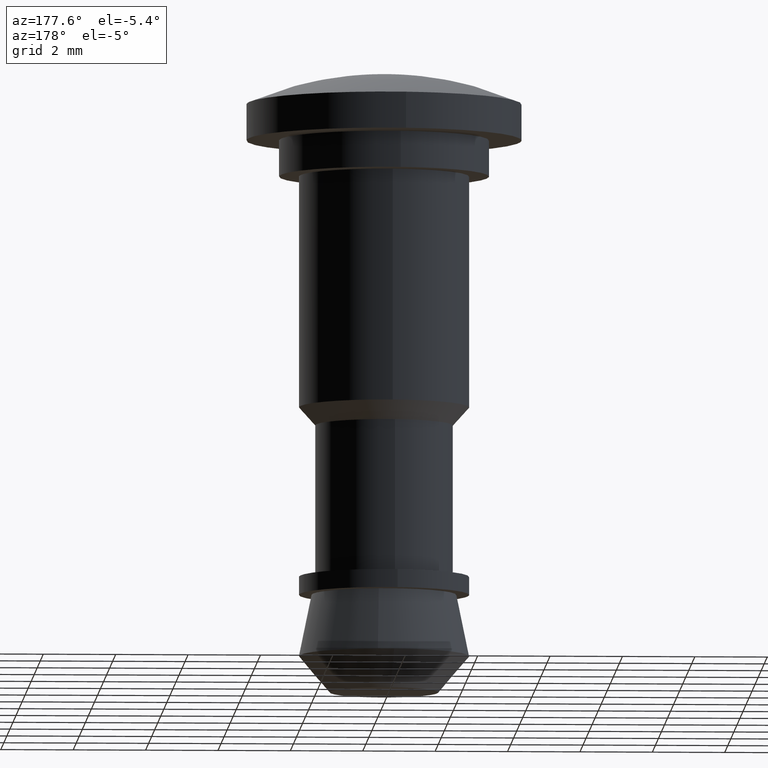
[diagram: clean part render]
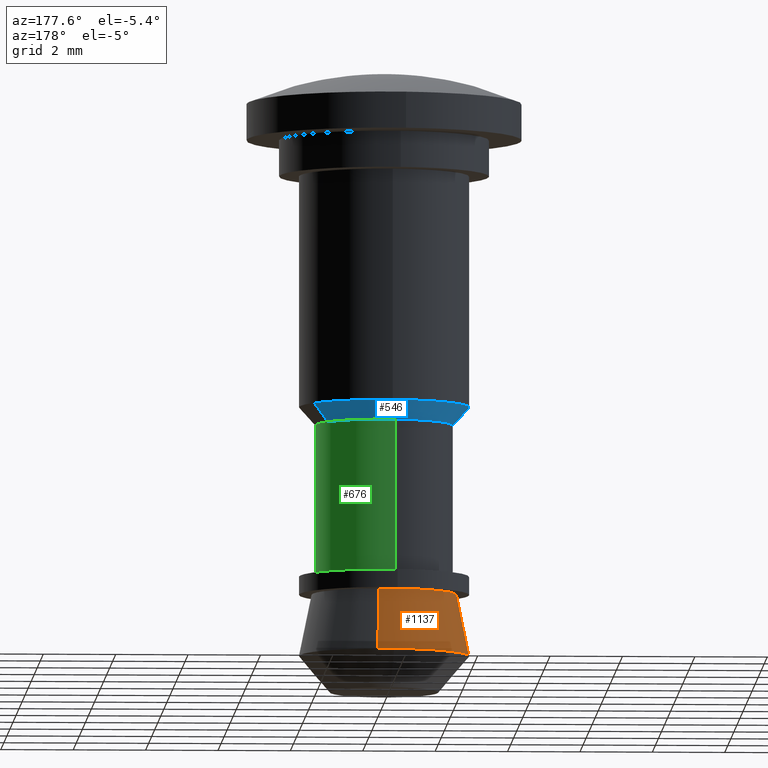
[diagram: same view with three faces highlighted in distinct colors, each labeled with its STEP entity id]
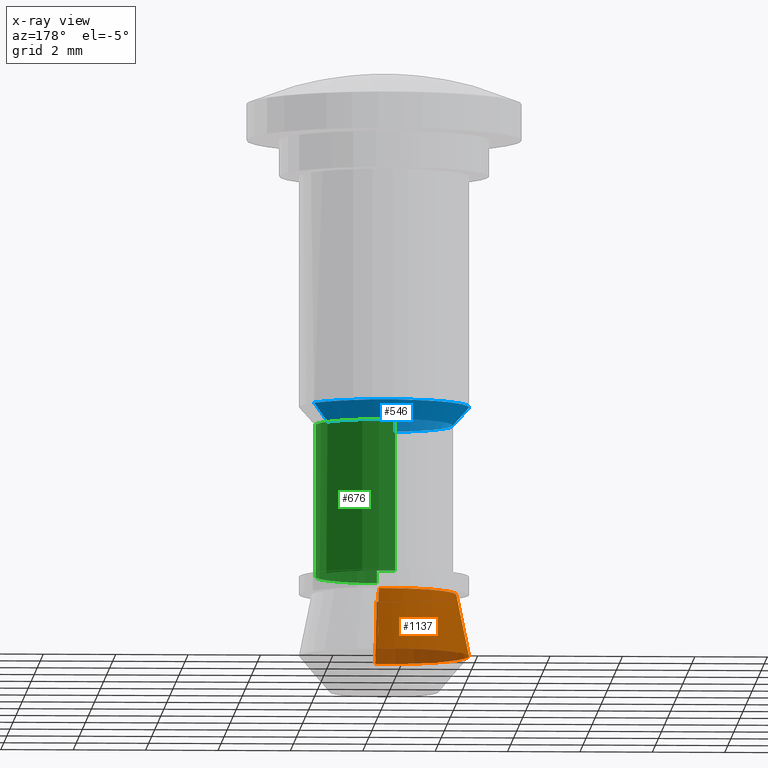
[diagram: x-ray of the same camera — body ghosted, the three highlighted faces saturated]
A machine part, auxiliary view with three faces highlighted in distinct colors.
The next image is the same camera in x-ray (body ghosted, the three faces saturated) — at least one of them is partly hidden behind the body in this view.
Their STEP definitions:

[orange] entity #1137 — the highlighted face is a freeform B-spline surface patch.
#940=CARTESIAN_POINT('',(0.268134337348762,2.334633233307251,-13.299905292481110));
#941=VERTEX_POINT('',#940);
#957=CARTESIAN_POINT('',(0.228201329490028,1.986938386870660,-11.600000000001440));
#958=VERTEX_POINT('',#957);
#959=CARTESIAN_POINT('',(0.228201329490028,1.986938386870660,-11.600000000001440));
#960=CARTESIAN_POINT('',(0.268134337348762,2.334633233307251,-13.299905292481110));
#961=QUASI_UNIFORM_CURVE('',1,(#959,#960),.UNSPECIFIED.,.F.,.U.);
#962=EDGE_CURVE('',#958,#941,#961,.T.);
#979=CARTESIAN_POINT('',(0.122095608575917,-1.996269529733982,-11.599999238618530));
#980=VERTEX_POINT('',#979);
#994=CARTESIAN_POINT('',(0.143462662315270,-2.345597284441948,-13.299905085102059));
#995=VERTEX_POINT('',#994);
#996=CARTESIAN_POINT('',(0.122095608575917,-1.996269529733982,-11.599999238618530));
#997=CARTESIAN_POINT('',(0.143462662315270,-2.345597284441948,-13.299905085102059));
#998=QUASI_UNIFORM_CURVE('',1,(#996,#997),.UNSPECIFIED.,.F.,.U.);
#999=EDGE_CURVE('',#980,#995,#998,.T.);
#1032=CARTESIAN_POINT('',(0.121562934107822,-1.987536403913509,-11.557502367688020));
#1033=CARTESIAN_POINT('',(-1.865973469805687,-2.109099338021331,-11.557502367688024));
#1034=CARTESIAN_POINT('',(-1.987536403913509,-0.121562934107822,-11.557502367688020));
#1035=CARTESIAN_POINT('',(-2.109099338021331,1.865973469805687,-11.557502367688024));
#1036=CARTESIAN_POINT('',(-0.121562934107822,1.987536403913509,-11.557502367688020));
#1037=CARTESIAN_POINT('',(0.053228551065287,1.998227109126691,-11.557502367688020));
#1038=CARTESIAN_POINT('',(0.227203004284345,1.978246015710512,-11.557502367688024));
#1039=CARTESIAN_POINT('',(0.144010376131359,-2.354548836806472,-13.343465365598879));
#1040=CARTESIAN_POINT('',(-2.210538460675112,-2.498559212937830,-13.343465365598881));
#1041=CARTESIAN_POINT('',(-2.354548836806472,-0.144010376131359,-13.343465365598879));
#1042=CARTESIAN_POINT('',(-2.498559212937830,2.210538460675112,-13.343465365598881));
#1043=CARTESIAN_POINT('',(-0.144010376131359,2.354548836806472,-13.343465365598879));
#1044=CARTESIAN_POINT('',(0.063057573561364,2.367213655158867,-13.343465365598881));
#1045=CARTESIAN_POINT('',(0.269157620662086,2.343542913748270,-13.343465365598886));
#1053=(BOUNDED_SURFACE()B_SPLINE_SURFACE(2,1,((#1032,#1039),(#1033,#1040),(#1034,#1041),(#1035,#1042),(#1036,#1043),(#1037,#1044),(#1038,#1045)),.UNSPECIFIED.,.F.,.F.,.U.)B_SPLINE_SURFACE_WITH_KNOTS((3,2,2,3),(2,2),(0.0,3.908434263656745,7.816868527313489,8.285880638952300),(0.0,1.0),.UNSPECIFIED.)GEOMETRIC_REPRESENTATION_ITEM()RATIONAL_B_SPLINE_SURFACE(((1.0,1.0),(0.707106781186548,0.707106781186548),(1.0,1.0),(0.707106781186548,0.707106781186548),(1.0,1.0),(0.964852813742386,0.964852813742386),(0.938140952186599,0.938140952186599)))REPRESENTATION_ITEM('')SURFACE());
#1054=CARTESIAN_POINT('',(-0.184377345131891,2.342736295773938,-13.299905292476980));
#1055=VERTEX_POINT('',#1054);
#1056=CARTESIAN_POINT('',(-0.184377345131891,2.342736295773938,-13.299905292476977));
#1057=CARTESIAN_POINT('',(-0.092330985380134,2.349980501392765,-13.299905292479099));
#1058=CARTESIAN_POINT('',(0.0,2.349980501392765,-13.299905292479099));
#1059=CARTESIAN_POINT('',(0.134506386276113,2.349980501392765,-13.299905292479107));
#1060=CARTESIAN_POINT('',(0.268134337348762,2.334633233307252,-13.299905292481103));
#1068=(BOUNDED_CURVE()B_SPLINE_CURVE(2,(#1056,#1057,#1058,#1059,#1060),.UNSPECIFIED.,.F.,.U.)B_SPLINE_CURVE_WITH_KNOTS((3,2,3),(0.236331300630658,0.250000000000000,0.269767755878481),.UNSPECIFIED.)CURVE()GEOMETRIC_REPRESENTATION_ITEM()RATIONAL_B_SPLINE_CURVE((0.969723356167415,0.983986122578880,1.0,0.976840633408132,0.957343736456971))REPRESENTATION_ITEM(''));
#1069=EDGE_CURVE('',#1055,#941,#1068,.T.);
#1070=ORIENTED_EDGE('',*,*,#1069,.F.);
#1071=CARTESIAN_POINT('',(-2.349980501392765,0.0,-13.299905292479099));
#1072=VERTEX_POINT('',#1071);
#1073=CARTESIAN_POINT('',(-2.349980501392765,0.0,-13.299905292479099));
#1074=CARTESIAN_POINT('',(-2.349980501392765,2.172299631042855,-13.299905292479099));
#1075=CARTESIAN_POINT('',(-0.184377345131891,2.342736295773938,-13.299905292476977));
#1083=(BOUNDED_CURVE()B_SPLINE_CURVE(2,(#1073,#1074,#1075),.UNSPECIFIED.,.F.,.U.)B_SPLINE_CURVE_WITH_KNOTS((3,3),(0.0,0.236331300630658),.UNSPECIFIED.)CURVE()GEOMETRIC_REPRESENTATION_ITEM()RATIONAL_B_SPLINE_CURVE((1.0,0.723120658607667,0.969723356167415))REPRESENTATION_ITEM(''));
#1084=EDGE_CURVE('',#1072,#1055,#1083,.T.);
#1085=ORIENTED_EDGE('',*,*,#1084,.F.);
#1086=CARTESIAN_POINT('',(0.143462662315270,-2.345597284441948,-13.299905085102065));
#1087=CARTESIAN_POINT('',(0.071798184795513,-2.349980501392765,-13.299905292479099));
#1088=CARTESIAN_POINT('',(0.0,-2.349980501392765,-13.299905292479099));
#1089=CARTESIAN_POINT('',(-2.349980501392765,-2.349980501392765,-13.299905292479099));
#1090=CARTESIAN_POINT('',(-2.349980501392765,0.0,-13.299905292479099));
#1098=(BOUNDED_CURVE()B_SPLINE_CURVE(2,(#1086,#1087,#1088,#1089,#1090),.UNSPECIFIED.,.F.,.U.)B_SPLINE_CURVE_WITH_KNOTS((3,2,3),(0.739332993524006,0.750000000000000,1.0),.UNSPECIFIED.)CURVE()GEOMETRIC_REPRESENTATION_ITEM()RATIONAL_B_SPLINE_CURVE((0.976072108716573,0.987502824552569,1.0,0.707106781186548,1.0))REPRESENTATION_ITEM(''));
#1099=EDGE_CURVE('',#995,#1072,#1098,.T.);
#1100=ORIENTED_EDGE('',*,*,#1099,.F.);
#1101=ORIENTED_EDGE('',*,*,#999,.F.);
#1102=CARTESIAN_POINT('',(-2.0,0.0,-11.600000000000000));
#1103=VERTEX_POINT('',#1102);
#1104=CARTESIAN_POINT('',(0.122095608575917,-1.996269529733982,-11.599999238618523));
#1105=CARTESIAN_POINT('',(0.061104794086950,-2.000000000000000,-11.599999999999994));
#1106=CARTESIAN_POINT('',(0.0,-2.0,-11.600000000000000));
#1107=CARTESIAN_POINT('',(-2.000000000000000,-2.000000000000000,-11.600000000000001));
#1108=CARTESIAN_POINT('',(-2.0,0.0,-11.600000000000000));
#1116=(BOUNDED_CURVE()B_SPLINE_CURVE(2,(#1104,#1105,#1106,#1107,#1108),.UNSPECIFIED.,.F.,.U.)B_SPLINE_CURVE_WITH_KNOTS((3,2,3),(0.739333088516402,0.750000000000000,1.0),.UNSPECIFIED.)CURVE()GEOMETRIC_REPRESENTATION_ITEM()RATIONAL_B_SPLINE_CURVE((0.976072312303500,0.987502935843083,1.0,0.707106781186548,1.0))REPRESENTATION_ITEM(''));
#1117=EDGE_CURVE('',#980,#1103,#1116,.T.);
#1118=ORIENTED_EDGE('',*,*,#1117,.T.);
#1119=CARTESIAN_POINT('',(-2.0,0.0,-11.600000000000000));
#1120=CARTESIAN_POINT('',(-2.000000000000000,2.000000000000000,-11.600000000000001));
#1121=CARTESIAN_POINT('',(0.0,2.0,-11.600000000000000));
#1122=CARTESIAN_POINT('',(0.114474470059950,2.000000000000000,-11.600000000000005));
#1123=CARTESIAN_POINT('',(0.228201329490028,1.986938386870660,-11.600000000001440));
#1131=(BOUNDED_CURVE()B_SPLINE_CURVE(2,(#1119,#1120,#1121,#1122,#1123),.UNSPECIFIED.,.F.,.U.)B_SPLINE_CURVE_WITH_KNOTS((3,2,3),(0.0,0.250000000000000,0.269767755878189),.UNSPECIFIED.)CURVE()GEOMETRIC_REPRESENTATION_ITEM()RATIONAL_B_SPLINE_CURVE((1.0,0.707106781186548,1.0,0.976840633408475,0.957343736457548))REPRESENTATION_ITEM(''));
#1132=EDGE_CURVE('',#1103,#958,#1131,.T.);
#1133=ORIENTED_EDGE('',*,*,#1132,.T.);
#1134=ORIENTED_EDGE('',*,*,#962,.T.);
#1135=EDGE_LOOP('',(#1070,#1085,#1100,#1101,#1118,#1133,#1134));
#1136=FACE_OUTER_BOUND('',#1135,.T.);
#1137=ADVANCED_FACE('',(#1136),#1053,.T.);

[blue] entity #546 — the highlighted face is a freeform B-spline surface patch.
#248=CARTESIAN_POINT('',(-0.143464067918807,2.345616776290660,-6.400000000000111));
#249=VERTEX_POINT('',#248);
#250=CARTESIAN_POINT('',(1.981144114827373,1.263949364605564,-6.399999999999643));
#251=VERTEX_POINT('',#250);
#252=CARTESIAN_POINT('',(-0.143464067918807,2.345616776290660,-6.400000000000111));
#253=CARTESIAN_POINT('',(-0.071798993763611,2.350000000000000,-6.400000000000111));
#254=CARTESIAN_POINT('',(0.0,2.350000000000000,-6.400000000000111));
#255=CARTESIAN_POINT('',(1.288255091624139,2.350000000000000,-6.400000000000111));
#256=CARTESIAN_POINT('',(1.981144114827373,1.263949364605564,-6.399999999999644));
#264=(BOUNDED_CURVE()B_SPLINE_CURVE(2,(#252,#253,#254,#255,#256),.UNSPECIFIED.,.F.,.U.)B_SPLINE_CURVE_WITH_KNOTS((3,2,3),(0.239332962240218,0.250000000000000,0.407950112626527),.UNSPECIFIED.)CURVE()GEOMETRIC_REPRESENTATION_ITEM()RATIONAL_B_SPLINE_CURVE((0.976072041669452,0.987502787901332,1.0,0.814949932403476,0.863729296954292))REPRESENTATION_ITEM(''));
#265=EDGE_CURVE('',#249,#251,#264,.T.);
#306=CARTESIAN_POINT('',(0.143463873339650,-2.345616788191615,-6.400000000000112));
#307=VERTEX_POINT('',#306);
#313=CARTESIAN_POINT('',(0.184378874975639,-2.342755734273563,-6.399999999997990));
#314=VERTEX_POINT('',#313);
#315=CARTESIAN_POINT('',(0.184378874975639,-2.342755734273564,-6.399999999997990));
#316=CARTESIAN_POINT('',(0.163933761071728,-2.344364799632380,-6.400000000000110));
#317=CARTESIAN_POINT('',(0.143463873339650,-2.345616788191615,-6.400000000000113));
#325=(BOUNDED_CURVE()B_SPLINE_CURVE(2,(#315,#316,#317),.UNSPECIFIED.,.F.,.U.)B_SPLINE_CURVE_WITH_KNOTS((3,3),(0.736331300630564,0.739332990867239),.UNSPECIFIED.)CURVE()GEOMETRIC_REPRESENTATION_ITEM()RATIONAL_B_SPLINE_CURVE((0.969723356167218,0.972855505432367,0.976072103022613))REPRESENTATION_ITEM(''));
#326=EDGE_CURVE('',#314,#307,#325,.T.);
#377=CARTESIAN_POINT('',(-2.350000000000000,0.0,-6.400000000000111));
#378=VERTEX_POINT('',#377);
#379=CARTESIAN_POINT('',(-2.350000000000000,0.0,-6.400000000000111));
#380=CARTESIAN_POINT('',(-2.350000000000001,2.210659257205923,-6.400000000000111));
#381=CARTESIAN_POINT('',(-0.143464067918807,2.345616776290660,-6.400000000000111));
#389=(BOUNDED_CURVE()B_SPLINE_CURVE(2,(#379,#380,#381),.UNSPECIFIED.,.F.,.U.)B_SPLINE_CURVE_WITH_KNOTS((3,3),(0.0,0.239332962240218),.UNSPECIFIED.)CURVE()GEOMETRIC_REPRESENTATION_ITEM()RATIONAL_B_SPLINE_CURVE((1.0,0.719603993285216,0.976072041669452))REPRESENTATION_ITEM(''));
#390=EDGE_CURVE('',#378,#249,#389,.T.);
#392=CARTESIAN_POINT('',(0.143463873339650,-2.345616788191615,-6.400000000000112));
#393=CARTESIAN_POINT('',(0.071798798638874,-2.350000000000000,-6.400000000000111));
#394=CARTESIAN_POINT('',(0.0,-2.350000000000000,-6.400000000000111));
#395=CARTESIAN_POINT('',(-2.350000000000001,-2.350000000000001,-6.400000000000110));
#396=CARTESIAN_POINT('',(-2.350000000000000,0.0,-6.400000000000111));
#404=(BOUNDED_CURVE()B_SPLINE_CURVE(2,(#392,#393,#394,#395,#396),.UNSPECIFIED.,.F.,.U.)B_SPLINE_CURVE_WITH_KNOTS((3,2,3),(0.739332990867239,0.750000000000000,1.0),.UNSPECIFIED.)CURVE()GEOMETRIC_REPRESENTATION_ITEM()RATIONAL_B_SPLINE_CURVE((0.976072103022614,0.987502821439973,1.0,0.707106781186547,1.0))REPRESENTATION_ITEM(''));
#405=EDGE_CURVE('',#307,#378,#404,.T.);
#442=CARTESIAN_POINT('',(1.592291892292633,1.015865686121517,-6.912499999999999));
#443=CARTESIAN_POINT('',(0.982350009734754,1.971903012349742,-6.912499999999998));
#444=CARTESIAN_POINT('',(-0.148189617055968,1.882927614088444,-6.912499999999998));
#445=CARTESIAN_POINT('',(-2.031117231144412,1.734737997032476,-6.912499999999998));
#446=CARTESIAN_POINT('',(-1.882927614088444,-0.148189617055968,-6.912499999999998));
#447=CARTESIAN_POINT('',(-1.734737997032476,-2.031117231144412,-6.912499999999998));
#448=CARTESIAN_POINT('',(0.148189617055968,-1.882927614088444,-6.912499999999998));
#449=CARTESIAN_POINT('',(1.990865420394796,1.270151456560499,-6.387187500000112));
#450=CARTESIAN_POINT('',(1.228246325043768,2.465498655530393,-6.387187500000112));
#451=CARTESIAN_POINT('',(-0.185283606408048,2.354251437277450,-6.387187500000112));
#452=CARTESIAN_POINT('',(-2.539535043685496,2.168967830869402,-6.387187500000112));
#453=CARTESIAN_POINT('',(-2.354251437277450,-0.185283606408048,-6.387187500000112));
#454=CARTESIAN_POINT('',(-2.168967830869402,-2.539535043685496,-6.387187500000112));
#455=CARTESIAN_POINT('',(0.185283606408048,-2.354251437277450,-6.387187500000112));
#463=(BOUNDED_SURFACE()B_SPLINE_SURFACE(2,1,((#442,#449),(#443,#450),(#444,#451),(#445,#452),(#446,#453),(#447,#454),(#448,#455)),.UNSPECIFIED.,.F.,.F.,.U.)B_SPLINE_SURFACE_WITH_KNOTS((3,2,2,3),(2,2),(0.0,2.660644899072642,6.573357985944176,10.486071072815710),(0.0,1.0),.UNSPECIFIED.)GEOMETRIC_REPRESENTATION_ITEM()RATIONAL_B_SPLINE_SURFACE(((0.872532871172386,0.872532871172386),(0.800832611206852,0.800832611206852),(1.0,1.0),(0.707106781186548,0.707106781186548),(1.0,1.0),(0.707106781186548,0.707106781186548),(1.0,1.0)))REPRESENTATION_ITEM('')SURFACE());
#464=CARTESIAN_POINT('',(-0.224262772584687,1.886718370299973,-6.900000000000014));
#465=VERTEX_POINT('',#464);
#466=CARTESIAN_POINT('',(1.601776092840370,1.021916507551292,-6.899999999999769));
#467=VERTEX_POINT('',#466);
#468=CARTESIAN_POINT('',(-0.224262772584687,1.886718370299973,-6.900000000000014));
#469=CARTESIAN_POINT('',(-0.112524678690934,1.900000000000000,-6.900000000000000));
#470=CARTESIAN_POINT('',(0.0,1.900000000000000,-6.900000000000000));
#471=CARTESIAN_POINT('',(1.041567946422718,1.900000000000000,-6.899999999999999));
#472=CARTESIAN_POINT('',(1.601776092840370,1.021916507551292,-6.899999999999769));
#480=(BOUNDED_CURVE()B_SPLINE_CURVE(2,(#468,#469,#470,#471,#472),.UNSPECIFIED.,.F.,.U.)B_SPLINE_CURVE_WITH_KNOTS((3,2,3),(0.229562677143779,0.250000000000000,0.407950112626923),.UNSPECIFIED.)CURVE()GEOMETRIC_REPRESENTATION_ITEM()RATIONAL_B_SPLINE_CURVE((0.956027153307751,0.976056186898846,1.0,0.814949932403013,0.863729296954536))REPRESENTATION_ITEM(''));
#481=EDGE_CURVE('',#465,#467,#480,.T.);
#482=ORIENTED_EDGE('',*,*,#481,.F.);
#483=CARTESIAN_POINT('',(-1.900000000000000,0.0,-6.900000000000000));
#484=VERTEX_POINT('',#483);
#485=CARTESIAN_POINT('',(-1.900000000000000,0.0,-6.900000000000000));
#486=CARTESIAN_POINT('',(-1.900000000000000,1.687533646889895,-6.900000000000000));
#487=CARTESIAN_POINT('',(-0.224262772584687,1.886718370299973,-6.900000000000014));
#495=(BOUNDED_CURVE()B_SPLINE_CURVE(2,(#485,#486,#487),.UNSPECIFIED.,.F.,.U.)B_SPLINE_CURVE_WITH_KNOTS((3,3),(0.0,0.229562677143779),.UNSPECIFIED.)CURVE()GEOMETRIC_REPRESENTATION_ITEM()RATIONAL_B_SPLINE_CURVE((1.0,0.731050594287701,0.956027153307751))REPRESENTATION_ITEM(''));
#496=EDGE_CURVE('',#484,#465,#495,.T.);
#497=ORIENTED_EDGE('',*,*,#496,.F.);
#498=CARTESIAN_POINT('',(0.115989078387034,-1.896456309458509,-6.899999999999980));
#499=VERTEX_POINT('',#498);
#500=CARTESIAN_POINT('',(0.115989078387034,-1.896456309458508,-6.899999999999980));
#501=CARTESIAN_POINT('',(0.058048672491361,-1.900000000000000,-6.899999999999999));
#502=CARTESIAN_POINT('',(0.0,-1.900000000000000,-6.900000000000000));
#503=CARTESIAN_POINT('',(-1.900000000000000,-1.900000000000000,-6.900000000000000));
#504=CARTESIAN_POINT('',(-1.900000000000000,0.0,-6.900000000000000));
#512=(BOUNDED_CURVE()B_SPLINE_CURVE(2,(#500,#501,#502,#503,#504),.UNSPECIFIED.,.F.,.U.)B_SPLINE_CURVE_WITH_KNOTS((3,2,3),(0.739333248543419,0.750000000000000,1.0),.UNSPECIFIED.)CURVE()GEOMETRIC_REPRESENTATION_ITEM()RATIONAL_B_SPLINE_CURVE((0.976072655272477,0.987503123326395,1.0,0.707106781186547,1.0))REPRESENTATION_ITEM(''));
#513=EDGE_CURVE('',#499,#484,#512,.T.);
#514=ORIENTED_EDGE('',*,*,#513,.F.);
#515=CARTESIAN_POINT('',(0.149072281924697,-1.894142934094936,-6.899999999994149));
#516=VERTEX_POINT('',#515);
#517=CARTESIAN_POINT('',(0.149072281924698,-1.894142934094936,-6.899999999994149));
#518=CARTESIAN_POINT('',(0.132540775396677,-1.895443991870518,-6.899999999999999));
#519=CARTESIAN_POINT('',(0.115989078387034,-1.896456309458508,-6.899999999999980));
#527=(BOUNDED_CURVE()B_SPLINE_CURVE(2,(#517,#518,#519),.UNSPECIFIED.,.F.,.U.)B_SPLINE_CURVE_WITH_KNOTS((3,3),(0.736331300625277,0.739333248543419),.UNSPECIFIED.)CURVE()GEOMETRIC_REPRESENTATION_ITEM()RATIONAL_B_SPLINE_CURVE((0.969723356156185,0.972855774301967,0.976072655272477))REPRESENTATION_ITEM(''));
#528=EDGE_CURVE('',#516,#499,#527,.T.);
#529=ORIENTED_EDGE('',*,*,#528,.F.);
#530=CARTESIAN_POINT('',(0.149072281924697,-1.894142934094936,-6.899999999994149));
#531=CARTESIAN_POINT('',(0.184378874975639,-2.342755734273563,-6.399999999997990));
#532=QUASI_UNIFORM_CURVE('',1,(#530,#531),.UNSPECIFIED.,.F.,.U.);
#533=EDGE_CURVE('',#516,#314,#532,.T.);
#534=ORIENTED_EDGE('',*,*,#533,.T.);
#535=ORIENTED_EDGE('',*,*,#326,.T.);
#536=ORIENTED_EDGE('',*,*,#405,.T.);
#537=ORIENTED_EDGE('',*,*,#390,.T.);
#538=ORIENTED_EDGE('',*,*,#265,.T.);
#539=CARTESIAN_POINT('',(1.601776092840370,1.021916507551292,-6.899999999999769));
#540=CARTESIAN_POINT('',(1.981144114827373,1.263949364605564,-6.399999999999643));
#541=QUASI_UNIFORM_CURVE('',1,(#539,#540),.UNSPECIFIED.,.F.,.U.);
#542=EDGE_CURVE('',#467,#251,#541,.T.);
#543=ORIENTED_EDGE('',*,*,#542,.F.);
#544=EDGE_LOOP('',(#482,#497,#514,#529,#534,#535,#536,#537,#538,#543));
#545=FACE_OUTER_BOUND('',#544,.T.);
#546=ADVANCED_FACE('',(#545),#463,.T.);

[green] entity #676 — the highlighted face is a freeform B-spline surface patch.
#464=CARTESIAN_POINT('',(-0.224262772584687,1.886718370299973,-6.900000000000014));
#465=VERTEX_POINT('',#464);
#466=CARTESIAN_POINT('',(1.601776092840370,1.021916507551292,-6.899999999999769));
#467=VERTEX_POINT('',#466);
#468=CARTESIAN_POINT('',(-0.224262772584687,1.886718370299973,-6.900000000000014));
#469=CARTESIAN_POINT('',(-0.112524678690934,1.900000000000000,-6.900000000000000));
#470=CARTESIAN_POINT('',(0.0,1.900000000000000,-6.900000000000000));
#471=CARTESIAN_POINT('',(1.041567946422718,1.900000000000000,-6.899999999999999));
#472=CARTESIAN_POINT('',(1.601776092840370,1.021916507551292,-6.899999999999769));
#480=(BOUNDED_CURVE()B_SPLINE_CURVE(2,(#468,#469,#470,#471,#472),.UNSPECIFIED.,.F.,.U.)B_SPLINE_CURVE_WITH_KNOTS((3,2,3),(0.229562677143779,0.250000000000000,0.407950112626923),.UNSPECIFIED.)CURVE()GEOMETRIC_REPRESENTATION_ITEM()RATIONAL_B_SPLINE_CURVE((0.956027153307751,0.976056186898846,1.0,0.814949932403013,0.863729296954536))REPRESENTATION_ITEM(''));
#481=EDGE_CURVE('',#465,#467,#480,.T.);
#498=CARTESIAN_POINT('',(0.115989078387034,-1.896456309458509,-6.899999999999980));
#499=VERTEX_POINT('',#498);
#515=CARTESIAN_POINT('',(0.149072281924697,-1.894142934094936,-6.899999999994149));
#516=VERTEX_POINT('',#515);
#517=CARTESIAN_POINT('',(0.149072281924698,-1.894142934094936,-6.899999999994149));
#518=CARTESIAN_POINT('',(0.132540775396677,-1.895443991870518,-6.899999999999999));
#519=CARTESIAN_POINT('',(0.115989078387034,-1.896456309458508,-6.899999999999980));
#527=(BOUNDED_CURVE()B_SPLINE_CURVE(2,(#517,#518,#519),.UNSPECIFIED.,.F.,.U.)B_SPLINE_CURVE_WITH_KNOTS((3,3),(0.736331300625277,0.739333248543419),.UNSPECIFIED.)CURVE()GEOMETRIC_REPRESENTATION_ITEM()RATIONAL_B_SPLINE_CURVE((0.969723356156185,0.972855774301967,0.976072655272477))REPRESENTATION_ITEM(''));
#528=EDGE_CURVE('',#516,#499,#527,.T.);
#565=CARTESIAN_POINT('',(1.900000000000000,0.0,-6.900000000000000));
#566=VERTEX_POINT('',#565);
#567=CARTESIAN_POINT('',(1.601776092840370,1.021916507551292,-6.899999999999769));
#568=CARTESIAN_POINT('',(1.900000000000000,0.554473305224971,-6.900000000000000));
#569=CARTESIAN_POINT('',(1.900000000000000,0.0,-6.900000000000000));
#577=(BOUNDED_CURVE()B_SPLINE_CURVE(2,(#567,#568,#569),.UNSPECIFIED.,.F.,.U.)B_SPLINE_CURVE_WITH_KNOTS((3,3),(0.407950112626923,0.500000000000000),.UNSPECIFIED.)CURVE()GEOMETRIC_REPRESENTATION_ITEM()RATIONAL_B_SPLINE_CURVE((0.863729296954536,0.892156848783535,1.0))REPRESENTATION_ITEM(''));
#578=EDGE_CURVE('',#467,#566,#577,.T.);
#584=CARTESIAN_POINT('',(1.900000000000000,0.0,-6.900000000000000));
#585=CARTESIAN_POINT('',(1.900000000000000,-1.756341934073613,-6.900000000000001));
#586=CARTESIAN_POINT('',(0.149072281924697,-1.894142934094936,-6.899999999994149));
#594=(BOUNDED_CURVE()B_SPLINE_CURVE(2,(#584,#585,#586),.UNSPECIFIED.,.F.,.U.)B_SPLINE_CURVE_WITH_KNOTS((3,3),(0.500000000000000,0.736331300625277),.UNSPECIFIED.)CURVE()GEOMETRIC_REPRESENTATION_ITEM()RATIONAL_B_SPLINE_CURVE((1.0,0.723120658613972,0.969723356156184))REPRESENTATION_ITEM(''));
#595=EDGE_CURVE('',#566,#516,#594,.T.);
#600=CARTESIAN_POINT('',(-0.252262389637565,1.883390191386260,-6.795000000000001));
#601=CARTESIAN_POINT('',(-0.238224249063758,1.885058837189388,-6.795000000000000));
#602=CARTESIAN_POINT('',(-0.170267984412158,1.893136469352351,-6.794999999999998));
#603=CARTESIAN_POINT('',(-0.115992225116228,1.896456117001547,-6.794999999999998));
#604=CARTESIAN_POINT('',(1.780463891885319,2.012448342117775,-6.794999999999999));
#605=CARTESIAN_POINT('',(1.896456117001547,0.115992225116228,-6.794999999999998));
#606=CARTESIAN_POINT('',(2.012448342117775,-1.780463891885319,-6.794999999999999));
#607=CARTESIAN_POINT('',(0.102353231838976,-1.897290313566599,-6.795000000000001));
#608=CARTESIAN_POINT('',(0.088795257084982,-1.898119554826487,-6.794999999999997));
#609=CARTESIAN_POINT('',(-0.252262389637565,1.883390191386260,-11.207625000000009));
#610=CARTESIAN_POINT('',(-0.238224249063758,1.885058837189388,-11.207625000000009));
#611=CARTESIAN_POINT('',(-0.170267984412158,1.893136469352351,-11.207625000000004));
#612=CARTESIAN_POINT('',(-0.115992225116228,1.896456117001547,-11.207625000000000));
#613=CARTESIAN_POINT('',(1.780463891885319,2.012448342117775,-11.207625000000004));
#614=CARTESIAN_POINT('',(1.896456117001547,0.115992225116228,-11.207625000000000));
#615=CARTESIAN_POINT('',(2.012448342117775,-1.780463891885319,-11.207625000000004));
#616=CARTESIAN_POINT('',(0.102353231838976,-1.897290313566599,-11.207625000000004));
#617=CARTESIAN_POINT('',(0.088795257084982,-1.898119554826487,-11.207624999999998));
#625=(BOUNDED_SURFACE()B_SPLINE_SURFACE(2,1,((#600,#609),(#601,#610),(#602,#611),(#603,#612),(#604,#613),(#605,#614),(#606,#615),(#607,#616),(#608,#617)),.UNSPECIFIED.,.F.,.F.,.U.)B_SPLINE_SURFACE_WITH_KNOTS((3,1,2,2,1,3),(2,2),(0.0,0.032107249986200,0.158028172947621,3.306051246983143,6.454074321018664,6.486187854684401),(0.0,4.412625000000006),.UNSPECIFIED.)GEOMETRIC_REPRESENTATION_ITEM()RATIONAL_B_SPLINE_SURFACE(((0.972009223464797,0.972009223464797),(0.974757512129962,0.974757512129962),(0.988284271247462,0.988284271247462),(1.0,1.0),(0.707106781186548,0.707106781186548),(1.0,1.0),(0.707106781186548,0.707106781186548),(1.002987854924066,1.002987854924066),(1.005975709848133,1.005975709848133)))REPRESENTATION_ITEM('')SURFACE());
#626=ORIENTED_EDGE('',*,*,#481,.T.);
#627=ORIENTED_EDGE('',*,*,#578,.T.);
#628=ORIENTED_EDGE('',*,*,#595,.T.);
#629=ORIENTED_EDGE('',*,*,#528,.T.);
#630=CARTESIAN_POINT('',(0.115989116346557,-1.896456307136930,-11.100000000000000));
#631=VERTEX_POINT('',#630);
#632=CARTESIAN_POINT('',(0.115989078387034,-1.896456309458509,-6.899999999999980));
#633=CARTESIAN_POINT('',(0.115989116346557,-1.896456307136930,-11.100000000000000));
#634=QUASI_UNIFORM_CURVE('',1,(#632,#633),.UNSPECIFIED.,.F.,.U.);
#635=EDGE_CURVE('',#499,#631,#634,.T.);
#636=ORIENTED_EDGE('',*,*,#635,.T.);
#637=CARTESIAN_POINT('',(1.900000000000000,0.0,-11.100000000000000));
#638=VERTEX_POINT('',#637);
#639=CARTESIAN_POINT('',(1.900000000000000,0.0,-11.100000000000000));
#640=CARTESIAN_POINT('',(1.900000000000000,-1.787344462501211,-11.100000000000003));
#641=CARTESIAN_POINT('',(0.115989116346558,-1.896456307136930,-11.099999999999998));
#649=(BOUNDED_CURVE()B_SPLINE_CURVE(2,(#639,#640,#641),.UNSPECIFIED.,.F.,.U.)B_SPLINE_CURVE_WITH_KNOTS((3,3),(0.500000000000000,0.739333245089715),.UNSPECIFIED.)CURVE()GEOMETRIC_REPRESENTATION_ITEM()RATIONAL_B_SPLINE_CURVE((1.0,0.719603661906417,0.976072647870516))REPRESENTATION_ITEM(''));
#650=EDGE_CURVE('',#638,#631,#649,.T.);
#651=ORIENTED_EDGE('',*,*,#650,.F.);
#652=CARTESIAN_POINT('',(-0.224262799936259,1.886718367048891,-11.100000000000000));
#653=VERTEX_POINT('',#652);
#654=CARTESIAN_POINT('',(-0.224262799936259,1.886718367048890,-11.099999999999998));
#655=CARTESIAN_POINT('',(-0.112524692511293,1.900000000000000,-11.100000000000007));
#656=CARTESIAN_POINT('',(0.0,1.900000000000000,-11.100000000000000));
#657=CARTESIAN_POINT('',(1.900000000000000,1.900000000000000,-11.100000000000001));
#658=CARTESIAN_POINT('',(1.900000000000000,0.0,-11.100000000000000));
#666=(BOUNDED_CURVE()B_SPLINE_CURVE(2,(#654,#655,#656,#657,#658),.UNSPECIFIED.,.F.,.U.)B_SPLINE_CURVE_WITH_KNOTS((3,2,3),(0.229562674693754,0.250000000000000,0.500000000000000),.UNSPECIFIED.)CURVE()GEOMETRIC_REPRESENTATION_ITEM()RATIONAL_B_SPLINE_CURVE((0.956027148505594,0.976056184028464,1.0,0.707106781186547,1.0))REPRESENTATION_ITEM(''));
#667=EDGE_CURVE('',#653,#638,#666,.T.);
#668=ORIENTED_EDGE('',*,*,#667,.F.);
#669=CARTESIAN_POINT('',(-0.224262772584687,1.886718370299973,-6.900000000000014));
#670=CARTESIAN_POINT('',(-0.224262799936259,1.886718367048891,-11.100000000000000));
#671=QUASI_UNIFORM_CURVE('',1,(#669,#670),.UNSPECIFIED.,.F.,.U.);
#672=EDGE_CURVE('',#465,#653,#671,.T.);
#673=ORIENTED_EDGE('',*,*,#672,.F.);
#674=EDGE_LOOP('',(#626,#627,#628,#629,#636,#651,#668,#673));
#675=FACE_OUTER_BOUND('',#674,.T.);
#676=ADVANCED_FACE('',(#675),#625,.T.);